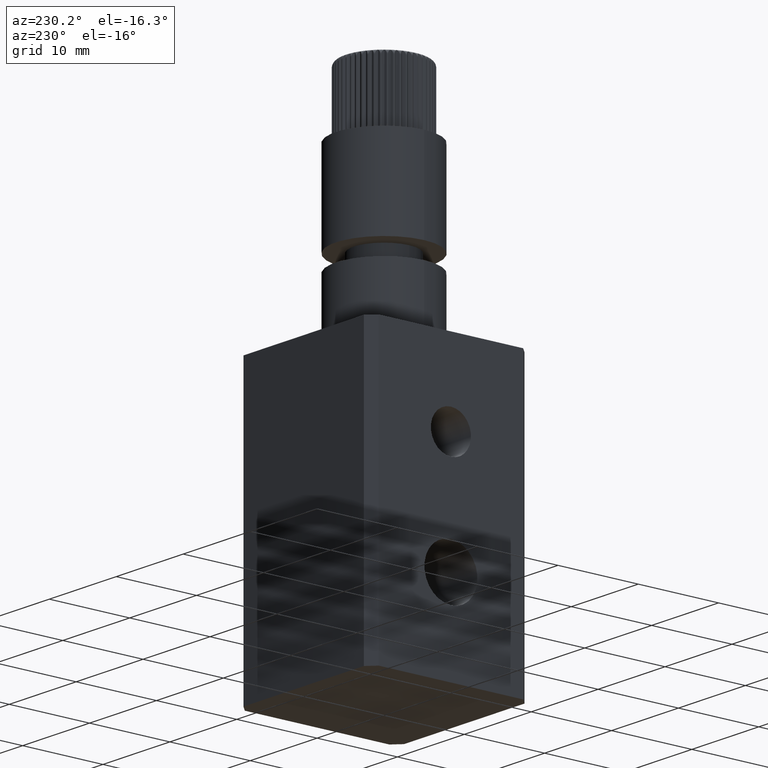
[diagram: clean part render]
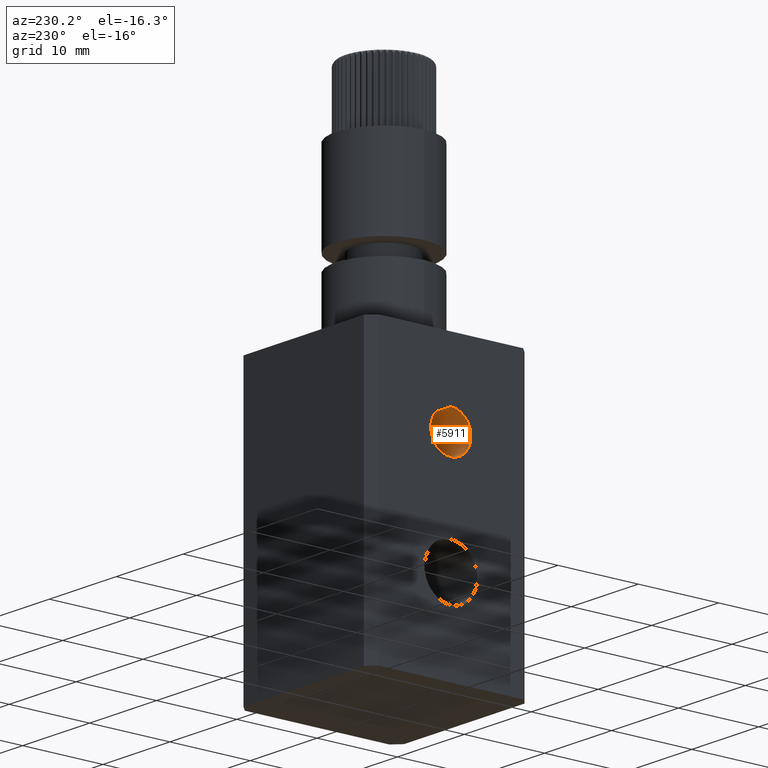
[diagram: same view with one face highlighted and labeled with its STEP entity id]
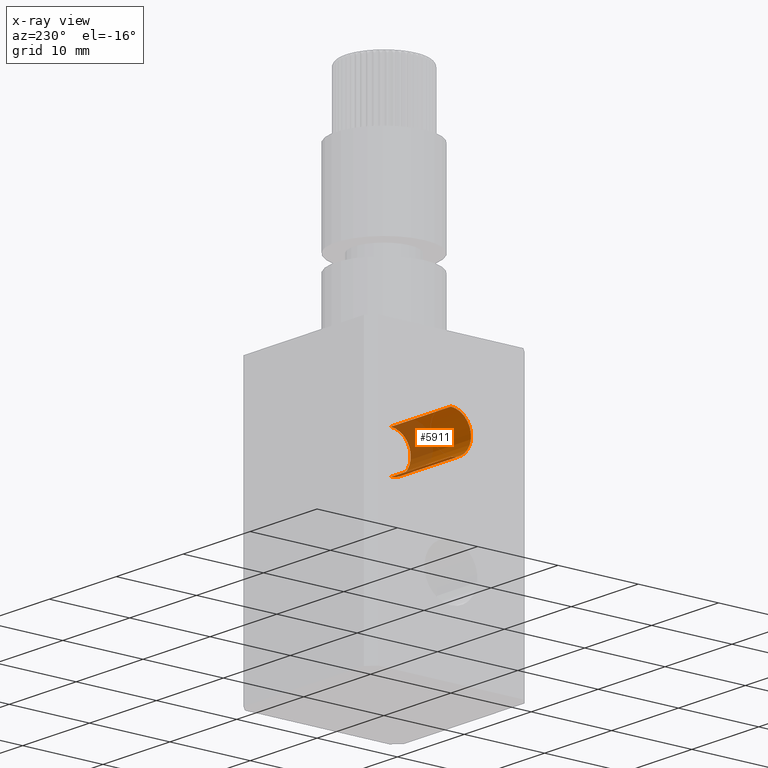
[diagram: x-ray of the same camera — body ghosted, the highlighted face saturated]
A machine part, auxiliary view. The second image highlights one B-rep face of the part: STEP entity #5911.
The next image is the same camera in x-ray: the body ghosted, the highlighted face saturated — about 37% of this face is hidden behind the body in this view.
In plain terms, the highlighted cylindrical surface (edge-blend (fillet) strip) has radius 2.5 mm, axis along (-1, -0, -0).
Its self-contained STEP definition (entity closure, byte-faithful):
#592 = FACE_OUTER_BOUND ( 'NONE', #1464, .T. ) ;
#860 = DIRECTION ( 'NONE',  ( -1.000000000000000000, -0.0000000000000000000, -0.0000000000000000000 ) ) ;
#1015 = DIRECTION ( 'NONE',  ( -1.000000000000000000, -0.0000000000000000000, -0.0000000000000000000 ) ) ;
#1464 = EDGE_LOOP ( 'NONE', ( #5903, #1699, #7228, #3178 ) ) ;
#1614 = LINE ( 'NONE', #4774, #7099 ) ;
#1699 = ORIENTED_EDGE ( 'NONE', *, *, #6667, .T. ) ;
#2044 = CARTESIAN_POINT ( 'NONE',  ( -10.00000000000000700, -9.637352644315600700E-016, 25.00000000000000000 ) ) ;
#2075 = CARTESIAN_POINT ( 'NONE',  ( -1.000000000000006000, -6.575735646447222900E-016, 22.50000000000000400 ) ) ;
#3039 = CARTESIAN_POINT ( 'NONE',  ( -1.000000000000006000, -9.637352644315600700E-016, 27.50000000000000000 ) ) ;
#3178 = ORIENTED_EDGE ( 'NONE', *, *, #7553, .F. ) ;
#3405 = EDGE_CURVE ( 'NONE', #7523, #10453, #9398, .T. ) ;
#3703 = DIRECTION ( 'NONE',  ( 0.0000000000000000000, 0.0000000000000000000, 1.000000000000000000 ) ) ;
#4358 = VECTOR ( 'NONE', #9753, 1000.000000000000000 ) ;
#4449 = AXIS2_PLACEMENT_3D ( 'NONE', #2044, #7920, #3703 ) ;
#4499 = VERTEX_POINT ( 'NONE', #2075 ) ;
#4598 = CARTESIAN_POINT ( 'NONE',  ( -10.00000000000000700, -6.575735646447225900E-016, 22.50000000000000700 ) ) ;
#4606 = CYLINDRICAL_SURFACE ( 'NONE', #4449, 2.499999999999995100 ) ;
#4774 = CARTESIAN_POINT ( 'NONE',  ( -10.00000000000000700, -9.637352644315600700E-016, 27.49999999999999600 ) ) ;
#4973 = DIRECTION ( 'NONE',  ( 0.0000000000000000000, 0.0000000000000000000, 1.000000000000000000 ) ) ;
#5091 = CARTESIAN_POINT ( 'NONE',  ( -10.00000000000000900, -9.637352644315600700E-016, 25.00000000000000000 ) ) ;
#5134 = DIRECTION ( 'NONE',  ( 0.0000000000000000000, 0.0000000000000000000, 1.000000000000000000 ) ) ;
#5532 = DIRECTION ( 'NONE',  ( -1.000000000000000000, -0.0000000000000000000, -0.0000000000000000000 ) ) ;
#5757 = CARTESIAN_POINT ( 'NONE',  ( -10.00000000000000900, -9.637352644315600700E-016, 27.49999999999998900 ) ) ;
#5903 = ORIENTED_EDGE ( 'NONE', *, *, #6177, .F. ) ;
#5911 = ADVANCED_FACE ( 'NONE', ( #592 ), #4606, .F. ) ;
#6177 = EDGE_CURVE ( 'NONE', #4499, #6677, #7386, .T. ) ;
#6221 = LINE ( 'NONE', #4598, #4358 ) ;
#6222 = AXIS2_PLACEMENT_3D ( 'NONE', #8343, #860, #4973 ) ;
#6667 = EDGE_CURVE ( 'NONE', #4499, #7523, #6221, .T. ) ;
#6677 = VERTEX_POINT ( 'NONE', #3039 ) ;
#7099 = VECTOR ( 'NONE', #5532, 1000.000000000000000 ) ;
#7228 = ORIENTED_EDGE ( 'NONE', *, *, #3405, .T. ) ;
#7386 = CIRCLE ( 'NONE', #6222, 2.499999999999998700 ) ;
#7523 = VERTEX_POINT ( 'NONE', #8791 ) ;
#7553 = EDGE_CURVE ( 'NONE', #6677, #10453, #1614, .T. ) ;
#7920 = DIRECTION ( 'NONE',  ( -1.000000000000000000, -0.0000000000000000000, -0.0000000000000000000 ) ) ;
#8044 = AXIS2_PLACEMENT_3D ( 'NONE', #5091, #1015, #5134 ) ;
#8343 = CARTESIAN_POINT ( 'NONE',  ( -1.000000000000006000, -9.637352644315600700E-016, 25.00000000000000000 ) ) ;
#8791 = CARTESIAN_POINT ( 'NONE',  ( -10.00000000000000900, -6.575735646447227900E-016, 22.50000000000001400 ) ) ;
#9398 = CIRCLE ( 'NONE', #8044, 2.499999999999988500 ) ;
#9753 = DIRECTION ( 'NONE',  ( -1.000000000000000000, -0.0000000000000000000, -0.0000000000000000000 ) ) ;
#10453 = VERTEX_POINT ( 'NONE', #5757 ) ;